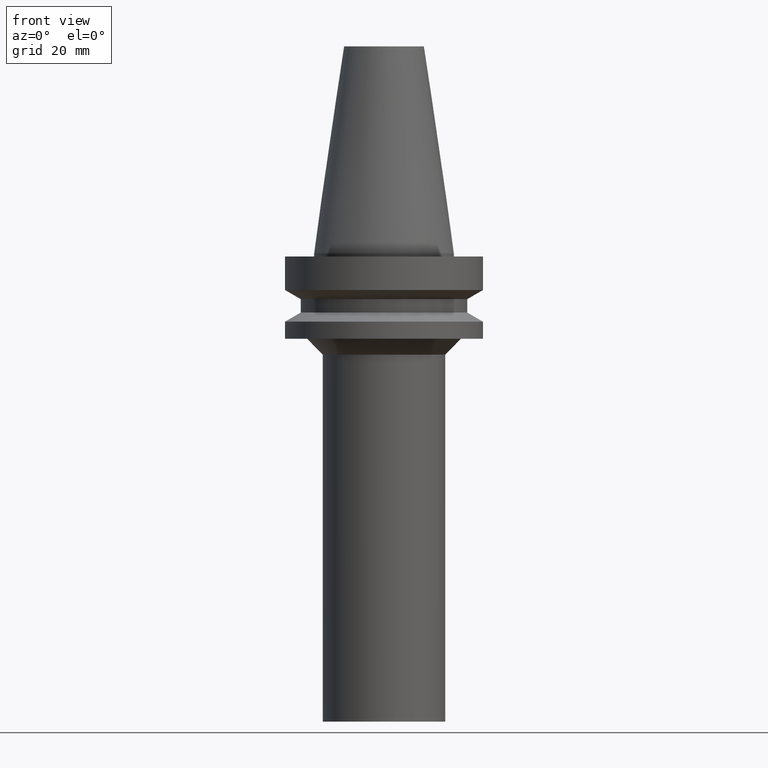
[diagram: clean part render]
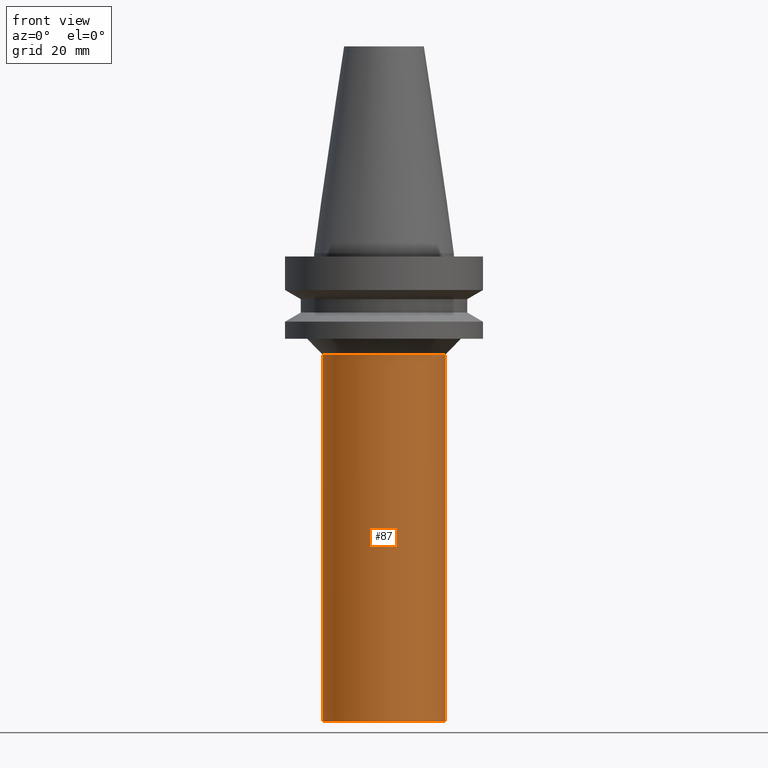
[diagram: same view with one face highlighted and labeled with its STEP entity id]
A machine part, front view. The second image highlights one B-rep face of the part: STEP entity #87.
In plain terms, the highlighted cylindrical surface (bore or boss wall) has radius 19.5 mm, axis along (-0, -0, 1).
Its self-contained STEP definition (entity closure, byte-faithful):
#87=ADVANCED_FACE('',(#123,#124),#125,.T.);
#123=FACE_BOUND('',#160,.T.);
#124=FACE_BOUND('',#161,.T.);
#125=CYLINDRICAL_SURFACE('',#162,19.5);
#160=EDGE_LOOP('',(#221));
#161=EDGE_LOOP('',(#222));
#162=AXIS2_PLACEMENT_3D('',#223,#224,#225);
#221=ORIENTED_EDGE('',*,*,#226,.F.);
#222=ORIENTED_EDGE('',*,*,#237,.T.);
#223=CARTESIAN_POINT('',(5.51091059616309E-015,1.10218211923262E-014,-90.0));
#224=DIRECTION('',(-6.12323399573677E-017,-1.22464679914735E-016,1.0));
#225=DIRECTION('',(-1.23259516440783E-032,1.0,1.22464679914735E-016));
#226=EDGE_CURVE('',#238,#238,#239,.T.);
#237=EDGE_CURVE('',#260,#260,#261,.T.);
#238=VERTEX_POINT('',#262);
#239=CIRCLE('',#263,19.5);
#260=VERTEX_POINT('',#284);
#261=CIRCLE('',#285,19.5);
#262=CARTESIAN_POINT('',(9.06238631369041E-015,19.5,-148.0));
#263=AXIS2_PLACEMENT_3D('',#286,#287,#288);
#284=CARTESIAN_POINT('',(1.95943487863576E-015,19.5,-32.0));
#285=AXIS2_PLACEMENT_3D('',#319,#320,#321);
#286=CARTESIAN_POINT('',(9.06238631369041E-015,1.81247726273808E-014,-148.0));
#287=DIRECTION('',(6.12323399573677E-017,1.22464679914735E-016,-1.0));
#288=DIRECTION('',(-1.23259516440783E-032,1.0,1.22464679914735E-016));
#319=CARTESIAN_POINT('',(1.95943487863577E-015,3.91886975727153E-015,-32.0));
#320=DIRECTION('',(6.12323399573677E-017,1.22464679914735E-016,-1.0));
#321=DIRECTION('',(-1.23259516440783E-032,1.0,1.22464679914735E-016));